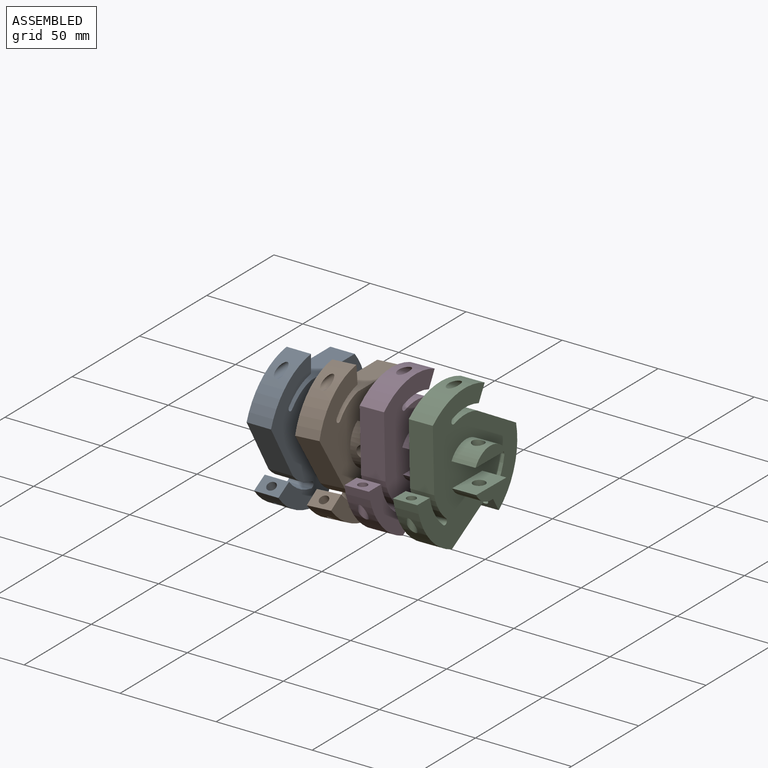
[diagram: assembled view]
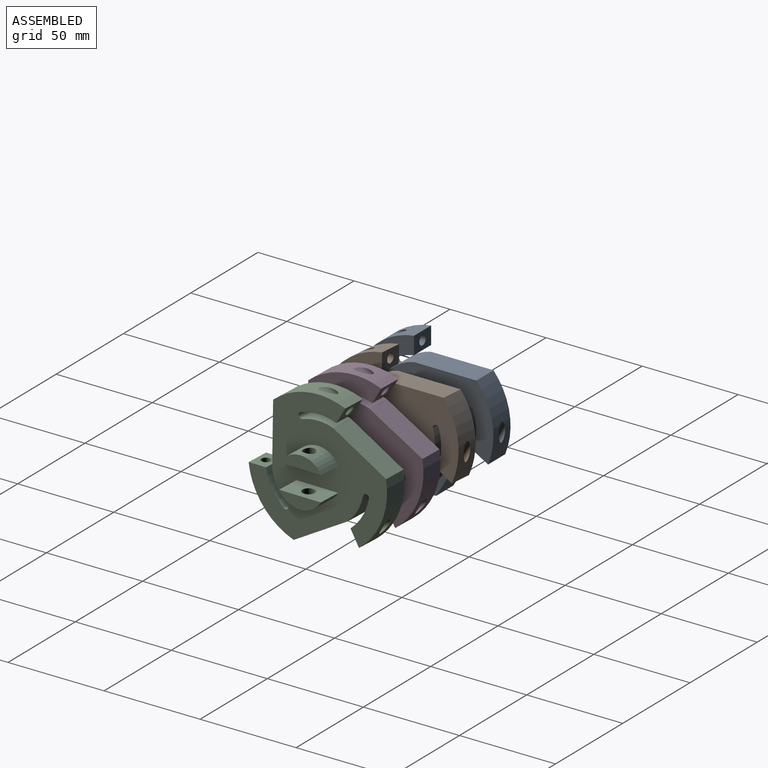
[diagram: assembled view, second angle]
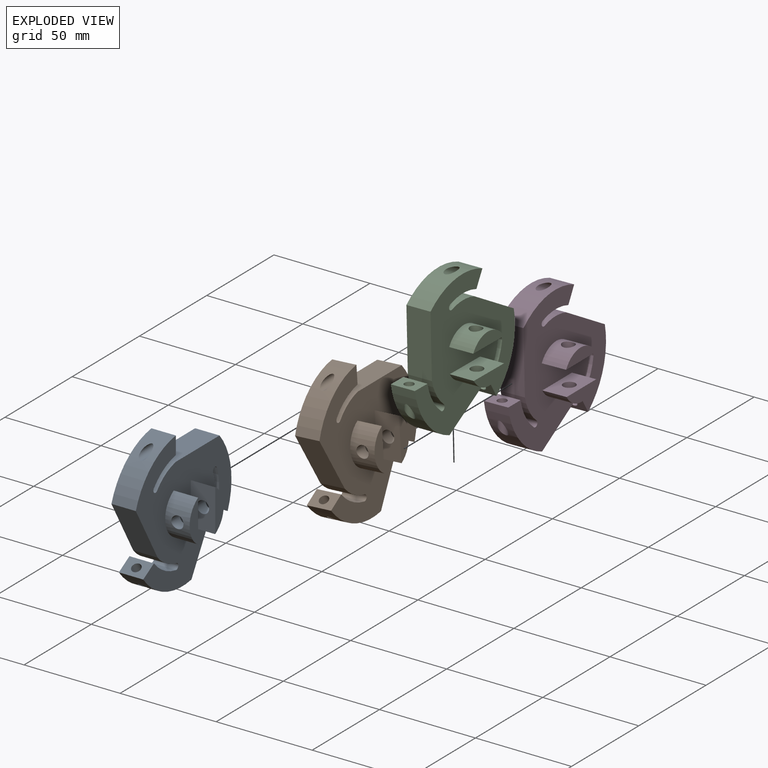
[diagram: exploded view]
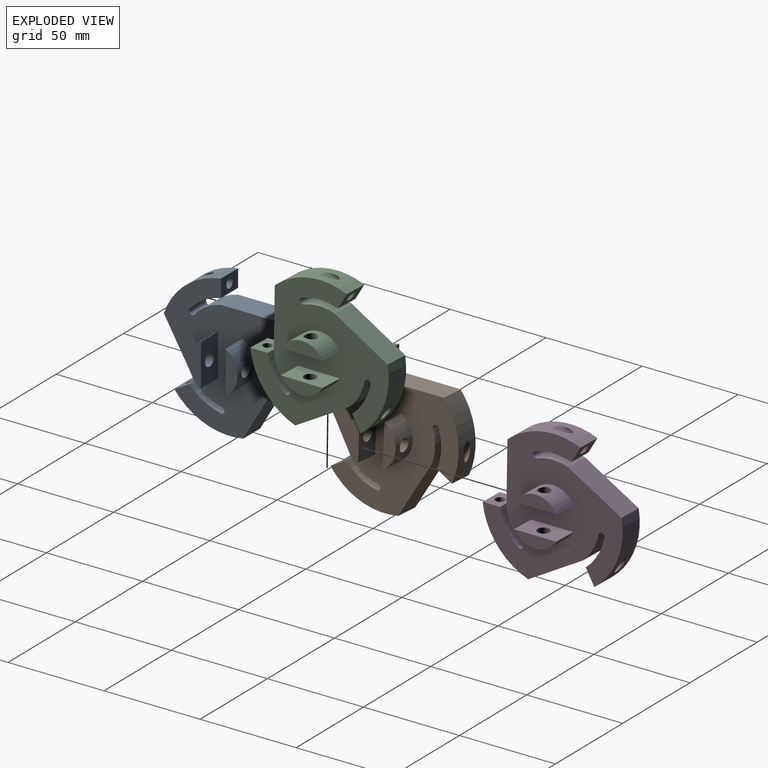
[diagram: exploded view, second angle]
ASSEMBLY  parts=4 mates=3
PART A: 40 faces, bbox 38.1x75x72.8 mm
  f0: cylinder r=3.17mm len=6.35mm, axis (0,-1,0), area 86.4mm2, adj f35,f38,f39
  f1: cylinder r=12.7mm len=22mm, axis (-1,0,0), area 305.9mm2, adj f20,f27,f28,f31
  f2: cylinder r=12.7mm len=22mm, axis (-1,0,0), area 305.9mm2, adj f3,f20,f29,f30
  f3: plane 22x6.35mm, normal (1,0,0), area 99.1mm2, adj f2,f29
  f4: cylinder r=36.58mm len=35.85mm, axis (-1,0,0), area 476.4mm2, adj f5,f9,f17,f20,f21
  f5: cylinder r=2.38mm len=17.21mm, axis (0,-0.5,0.87), area 197.2mm2, adj f4,f9
  f6: cylinder r=24.35mm len=14.07mm, axis (1,0,0), area 209mm2, adj f8,f10,f20,f21
  f7: cylinder r=27.52mm len=16.31mm, axis (1,0,0), area 244.2mm2, adj f8,f9,f20,f21
  f8: cylinder r=1.59mm len=12.7mm, axis (1,0,0), area 63.3mm2, adj f6,f7,f20,f21
  f9: plane 12.7x7.93mm, normal (0,-0.5,0.87), area 98.5mm2, adj f4,f5,f7,f20,f21
  f10: plane 28.12x16.24mm, normal (0,-0.87,-0.5), area 412.4mm2, adj f6,f18,f20,f21
  f11: cylinder r=36.58mm len=37.88mm, axis (-1,0,0), area 476.4mm2, adj f12,f16,f20,f21,f22
  f12: cylinder r=2.38mm len=17.21mm, axis (0,-0.5,-0.87), area 197.2mm2, adj f11,f16
  f13: cylinder r=24.35mm len=16.14mm, axis (1,0,0), area 209mm2, adj f15,f17,f20,f21
  f14: cylinder r=27.52mm len=18.84mm, axis (1,0,0), area 244.2mm2, adj f15,f16,f20,f21
  f15: cylinder r=1.59mm len=12.7mm, axis (1,0,0), area 63.3mm2, adj f13,f14,f20,f21
  f16: plane 12.7x7.93mm, normal (0,-0.5,-0.87), area 98.5mm2, adj f11,f12,f14,f20,f21
  f17: plane 28.12x16.24mm, normal (0,0.87,-0.5), area 412.4mm2, adj f4,f13,f20,f21
  f18: cylinder r=36.58mm len=29.77mm, axis (-1,0,0), area 476.4mm2, adj f10,f19,f20,f21,f26
  f19: plane 12.7x9.16mm, normal (0,1,0), area 98.5mm2, adj f18,f20,f21,f24,f26
  f20: plane 72.84x71.11mm, normal (1,0,0), area 2910.4mm2, adj f1,f2,f4,f6,f7,f8,f9,f10
  f21: plane 72.84x71.11mm, normal (-1,0,0), area 2947.2mm2, adj f4,f6,f7,f8,f9,f10,f11,f13
  f22: plane 32.47x12.7mm, normal (0,0,1), area 412.4mm2, adj f11,f20,f21,f23
  f23: cylinder r=24.35mm len=13.89mm, axis (1,0,0), area 209mm2, adj f20,f21,f22,f25
  f24: cylinder r=27.52mm len=16.32mm, axis (1,0,0), area 244.2mm2, adj f19,f20,f21,f25
  f25: cylinder r=1.59mm len=12.7mm, axis (1,0,0), area 63.3mm2, adj f20,f21,f23,f24
  f26: cylinder r=2.38mm len=17.13mm, axis (0,1,0), area 197.2mm2, adj f18,f19
  f27: plane 22x6.35mm, normal (1,0,0), area 99.1mm2, adj f1,f28
  f28: plane 22x12.7mm, normal (0,1,0), area 247.7mm2, adj f1,f20,f27,f31
  f29: plane 22x12.7mm, normal (0,-1,0), area 247.7mm2, adj f2,f3,f20,f30
  f30: cylinder r=3.17mm len=6.35mm, axis (0,-1,0), area 122.7mm2, adj f2,f29
  f31: cylinder r=3.17mm len=6.35mm, axis (0,-1,0), area 122.7mm2, adj f1,f28
  f32: plane 12.7x12.7mm, normal (0,0,1), area 129.6mm2, adj f21,f33,f35,f36,f38
  f33: plane 12.7x12.7mm, normal (0,1,0), area 129.6mm2, adj f21,f32,f34,f36,f37
  f34: plane 12.7x12.7mm, normal (0,0,-1), area 129.6mm2, adj f21,f33,f35,f36,f39
  f35: plane 12.7x12.7mm, normal (0,-1,0), area 129.6mm2, adj f0,f21,f32,f34,f36
  f36: plane 12.7x12.7mm, normal (-1,0,0), area 161.3mm2, adj f32,f33,f34,f35
  f37: cylinder r=3.17mm len=6.35mm, axis (0,-1,0), area 86.4mm2, adj f33,f38,f39
  f38: cylinder r=3.17mm len=6.35mm, axis (0,0,1), area 86.4mm2, adj f0,f32,f37
  f39: cylinder r=3.17mm len=6.35mm, axis (0,0,1), area 86.4mm2, adj f0,f34,f37
PART B: same geometry as A
PART C: same geometry as A
PART D: same geometry as A
PLACE A at identity fixed
PLACE B rot(axis=(0,-1,0),3.7deg) t=(26.02,0,0.45)mm
PLACE C rot(axis=(1,-0.02,0),90deg) t=(78.04,-0.12,2.43)mm
PLACE D rot(axis=(1,-0.01,0.01),90deg) t=(52.01,0,1.84)mm
MATE revolute D.f30 <-> C.f0  axis (0.02,0,-1) through (71.06,0,2.27)mm
MATE revolute A.f30 <-> B.f0  axis (0,-1,0) through (19.05,0,0)mm
MATE revolute D.f38 <-> B.f30  axis (0,-1,0) through (45.03,0,1.69)mm
